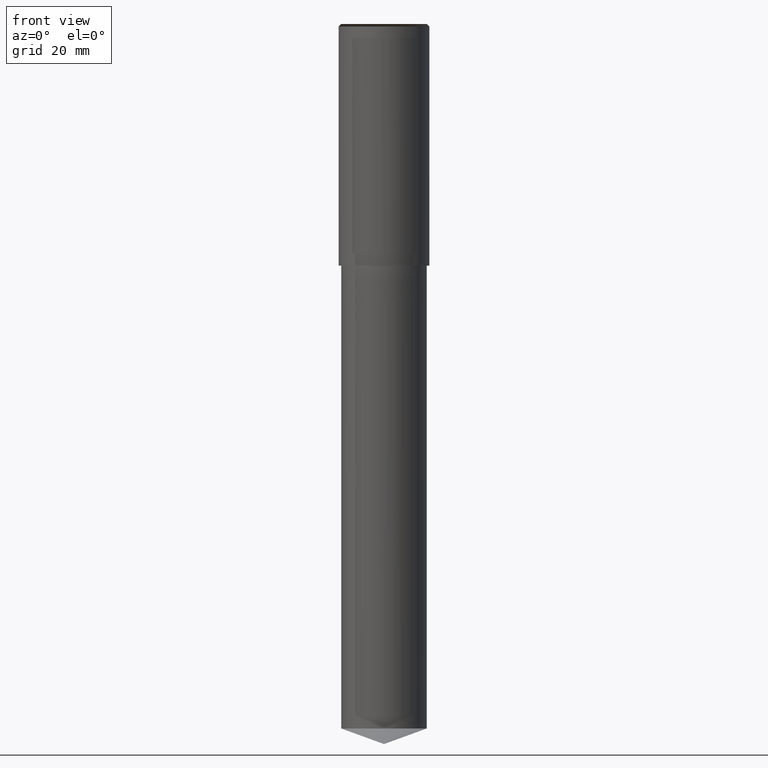
[diagram: clean part render]
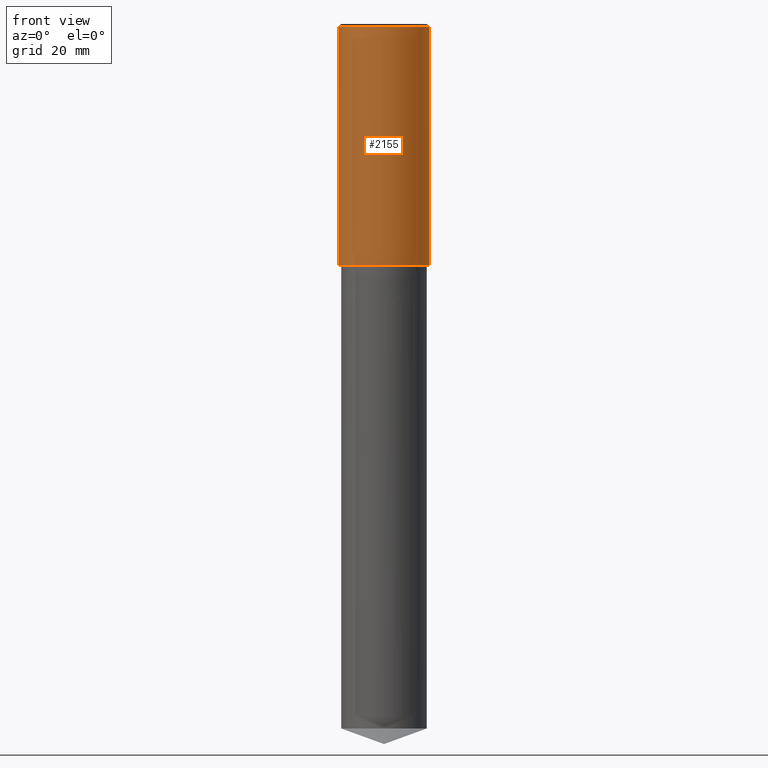
[diagram: same view with one face highlighted and labeled with its STEP entity id]
A machine part, front view. The second image highlights one B-rep face of the part: STEP entity #2155.
In plain terms, the highlighted face is a freeform B-spline surface patch.
Its self-contained STEP definition (entity closure, byte-faithful):
#1784=CARTESIAN_POINT('',(9.0,0.0,0.0));
#1788=CARTESIAN_POINT('',(-9.0,0.0,0.0));
#1789=CARTESIAN_POINT('',(9.0,0.0,47.5));
#1793=CARTESIAN_POINT('',(-9.0,0.0,47.5));
#1806=CARTESIAN_POINT('',(-9.0,-9.0,0.0));
#1807=CARTESIAN_POINT('',(0.0,-9.0,0.0));
#1808=CARTESIAN_POINT('',(9.0,-9.0,0.0));
#1809=CARTESIAN_POINT('',(-9.0,-9.0,47.5));
#1810=CARTESIAN_POINT('',(0.0,-9.0,47.5));
#1811=CARTESIAN_POINT('',(9.0,-9.0,47.5));
#2136=(
BOUNDED_SURFACE()
B_SPLINE_SURFACE(1,2,(
(#1788,#1806,#1807,#1808,#1784),
(#1793,#1809,#1810,#1811,#1789)
), .UNSPECIFIED.,.F.,.F.,.F.)
B_SPLINE_SURFACE_WITH_KNOTS((2,2),(3,2,3),(
0.0,1.0),(
0.0,0.5,1.0), .UNSPECIFIED.)
GEOMETRIC_REPRESENTATION_ITEM()
RATIONAL_B_SPLINE_SURFACE(((1.0,0.707106781187,1.0,0.707106781187,1.0),
(1.0,0.707106781187,1.0,0.707106781187,1.0)
))
REPRESENTATION_ITEM('')
SURFACE()
);
#2137=(
BOUNDED_CURVE()
B_SPLINE_CURVE(2,(#1784,#1808,#1807,#1806,#1788),.UNSPECIFIED.,.F.,.F.)
B_SPLINE_CURVE_WITH_KNOTS((3,2,3),
(0.0,0.5,1.0),.UNSPECIFIED.)
CURVE()
GEOMETRIC_REPRESENTATION_ITEM()
RATIONAL_B_SPLINE_CURVE((1.0,0.707106781187,1.0,0.707106781187,1.0))
REPRESENTATION_ITEM('')
);
#2138=(
BOUNDED_CURVE()
B_SPLINE_CURVE(1,(#1788,#1793),.UNSPECIFIED.,.F.,.F.)
B_SPLINE_CURVE_WITH_KNOTS((2,2),
(0.0,1.0),.UNSPECIFIED.)
CURVE()
GEOMETRIC_REPRESENTATION_ITEM()
RATIONAL_B_SPLINE_CURVE((1.0,1.0))
REPRESENTATION_ITEM('')
);
#2139=(
BOUNDED_CURVE()
B_SPLINE_CURVE(2,(#1793,#1809,#1810,#1811,#1789),.UNSPECIFIED.,.F.,.F.)
B_SPLINE_CURVE_WITH_KNOTS((3,2,3),
(0.0,0.5,1.0),.UNSPECIFIED.)
CURVE()
GEOMETRIC_REPRESENTATION_ITEM()
RATIONAL_B_SPLINE_CURVE((1.0,0.707106781187,1.0,0.707106781187,1.0))
REPRESENTATION_ITEM('')
);
#2140=(
BOUNDED_CURVE()
B_SPLINE_CURVE(1,(#1789,#1784),.UNSPECIFIED.,.F.,.F.)
B_SPLINE_CURVE_WITH_KNOTS((2,2),
(0.0,1.0),.UNSPECIFIED.)
CURVE()
GEOMETRIC_REPRESENTATION_ITEM()
RATIONAL_B_SPLINE_CURVE((1.0,1.0))
REPRESENTATION_ITEM('')
);
#2141=VERTEX_POINT('',#1784);
#2142=VERTEX_POINT('',#1788);
#2143=VERTEX_POINT('',#1789);
#2144=VERTEX_POINT('',#1793);
#2145=EDGE_CURVE('',#2141,#2142,#2137,.T.);
#2146=EDGE_CURVE('',#2142,#2144,#2138,.T.);
#2147=EDGE_CURVE('',#2144,#2143,#2139,.T.);
#2148=EDGE_CURVE('',#2143,#2141,#2140,.T.);
#2149=ORIENTED_EDGE('',*,*,#2145,.T.);
#2150=ORIENTED_EDGE('',*,*,#2146,.T.);
#2151=ORIENTED_EDGE('',*,*,#2147,.T.);
#2152=ORIENTED_EDGE('',*,*,#2148,.T.);
#2153=EDGE_LOOP('',(#2149,#2150,#2151,#2152));
#2154=FACE_OUTER_BOUND('',#2153,.T.);
#2155=ADVANCED_FACE('',(#2154),#2136,.T.);